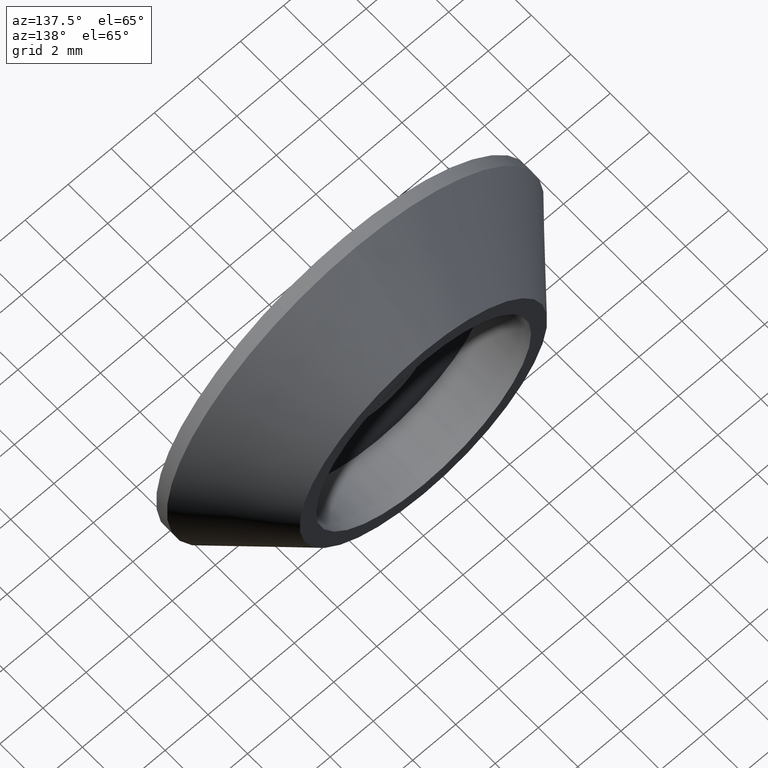
[diagram: clean part render]
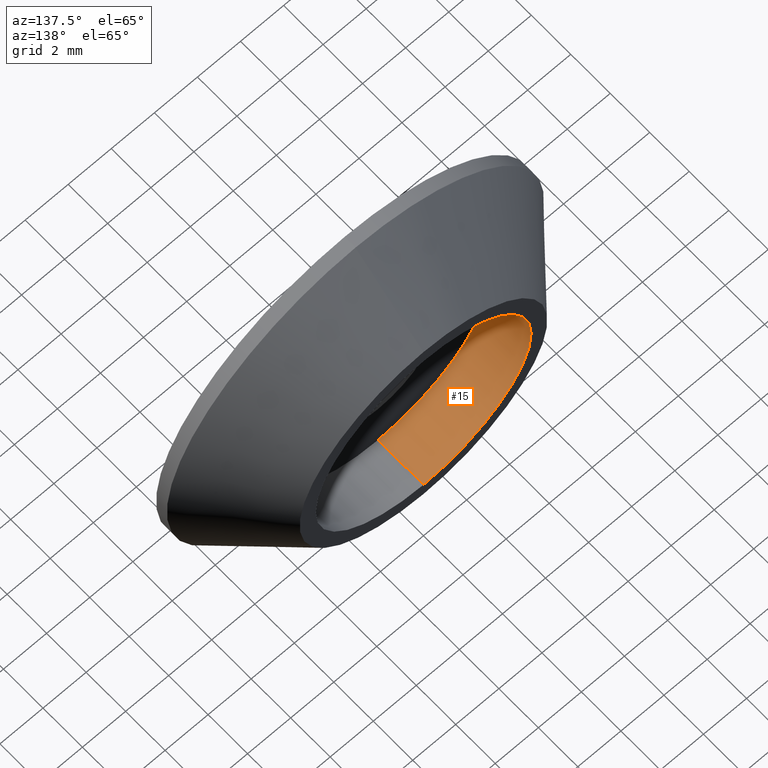
[diagram: same view with one face highlighted and labeled with its STEP entity id]
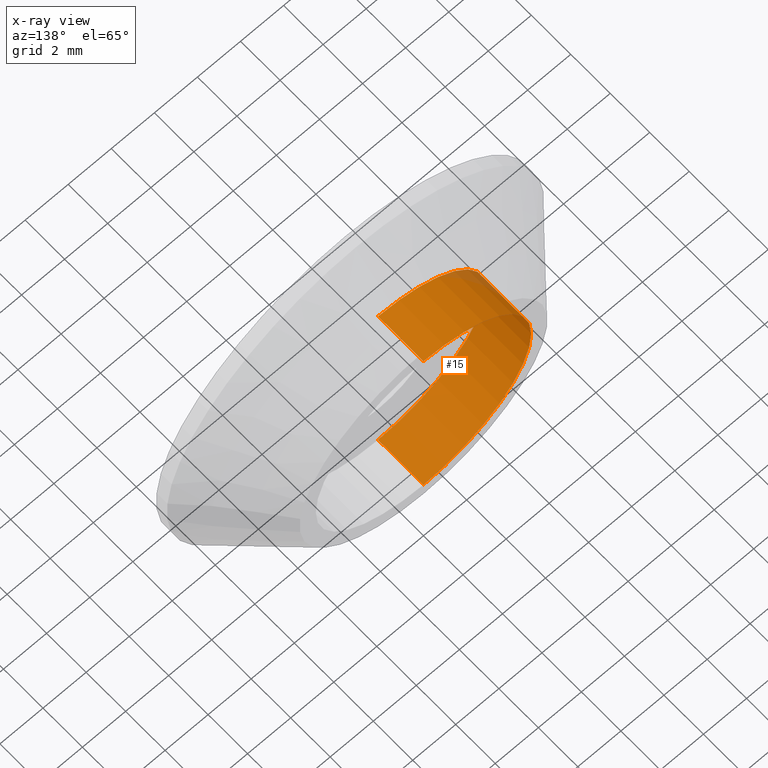
[diagram: x-ray of the same camera — body ghosted, the highlighted face saturated]
A machine part, auxiliary view. The second image highlights one B-rep face of the part: STEP entity #15.
The next image is the same camera in x-ray: the body ghosted, the highlighted face saturated — about 2% of this face is hidden behind the body in this view.
In plain terms, the highlighted cylindrical surface (partial cylindrical patch) has radius 5 mm, axis along (0, -1, 0).
Its self-contained STEP definition (entity closure, byte-faithful):
#1 = EDGE_CURVE ( 'NONE', #4, #12, #210, .T. ) ;
#4 = VERTEX_POINT ( 'NONE', #109 ) ;
#6 = ORIENTED_EDGE ( 'NONE', *, *, #9, .F. ) ;
#7 = VERTEX_POINT ( 'NONE', #211 ) ;
#8 = EDGE_LOOP ( 'NONE', ( #6, #11, #13, #48 ) ) ;
#9 = EDGE_CURVE ( 'NONE', #4, #7, #206, .T. ) ;
#11 = ORIENTED_EDGE ( 'NONE', *, *, #1, .T. ) ;
#12 = VERTEX_POINT ( 'NONE', #203 ) ;
#13 = ORIENTED_EDGE ( 'NONE', *, *, #46, .T. ) ;
#15 = ADVANCED_FACE ( 'NONE', ( #111 ), #108, .F. ) ;
#35 = EDGE_CURVE ( 'NONE', #7, #38, #95, .T. ) ;
#38 = VERTEX_POINT ( 'NONE', #219 ) ;
#46 = EDGE_CURVE ( 'NONE', #12, #38, #96, .T. ) ;
#48 = ORIENTED_EDGE ( 'NONE', *, *, #35, .F. ) ;
#68 = DIRECTION ( 'NONE',  ( 0.0000000000000000000, 0.0000000000000000000, -1.000000000000000000 ) ) ;
#69 = DIRECTION ( 'NONE',  ( 0.0000000000000000000, -1.000000000000000000, 0.0000000000000000000 ) ) ;
#70 = CARTESIAN_POINT ( 'NONE',  ( 0.0000000000000000000, 1.700000000000000200, 0.0000000000000000000 ) ) ;
#71 = AXIS2_PLACEMENT_3D ( 'NONE', #70, #69, #68 ) ;
#95 = LINE ( 'NONE', #222, #221 ) ;
#96 = CIRCLE ( 'NONE', #71, 5.000000000000000900 ) ;
#108 = CYLINDRICAL_SURFACE ( 'NONE', #198, 5.000000000000000900 ) ;
#109 = CARTESIAN_POINT ( 'NONE',  ( 6.123233995736766300E-016, 4.000000000000000000, 5.000000000000000000 ) ) ;
#110 = AXIS2_PLACEMENT_3D ( 'NONE', #201, #200, #199 ) ;
#111 = FACE_OUTER_BOUND ( 'NONE', #8, .T. ) ;
#136 = CARTESIAN_POINT ( 'NONE',  ( 0.0000000000000000000, 0.0000000000000000000, 0.0000000000000000000 ) ) ;
#198 = AXIS2_PLACEMENT_3D ( 'NONE', #136, #205, #202 ) ;
#199 = DIRECTION ( 'NONE',  ( 0.0000000000000000000, 0.0000000000000000000, -1.000000000000000000 ) ) ;
#200 = DIRECTION ( 'NONE',  ( 0.0000000000000000000, -1.000000000000000000, 0.0000000000000000000 ) ) ;
#201 = CARTESIAN_POINT ( 'NONE',  ( 0.0000000000000000000, 4.000000000000000000, 0.0000000000000000000 ) ) ;
#202 = DIRECTION ( 'NONE',  ( 0.0000000000000000000, 0.0000000000000000000, -1.000000000000000000 ) ) ;
#203 = CARTESIAN_POINT ( 'NONE',  ( 6.123233995736767300E-016, 1.700000000000000200, 5.000000000000000900 ) ) ;
#205 = DIRECTION ( 'NONE',  ( 0.0000000000000000000, -1.000000000000000000, 0.0000000000000000000 ) ) ;
#206 = CIRCLE ( 'NONE', #110, 5.000000000000000000 ) ;
#207 = DIRECTION ( 'NONE',  ( 0.0000000000000000000, -1.000000000000000000, 0.0000000000000000000 ) ) ;
#208 = VECTOR ( 'NONE', #207, 1000.000000000000000 ) ;
#209 = CARTESIAN_POINT ( 'NONE',  ( 6.123233995736767300E-016, 0.0000000000000000000, 5.000000000000000900 ) ) ;
#210 = LINE ( 'NONE', #209, #208 ) ;
#211 = CARTESIAN_POINT ( 'NONE',  ( 0.0000000000000000000, 4.000000000000000000, -5.000000000000000000 ) ) ;
#219 = CARTESIAN_POINT ( 'NONE',  ( 0.0000000000000000000, 1.700000000000000200, -5.000000000000000900 ) ) ;
#220 = DIRECTION ( 'NONE',  ( 0.0000000000000000000, -1.000000000000000000, 0.0000000000000000000 ) ) ;
#221 = VECTOR ( 'NONE', #220, 1000.000000000000000 ) ;
#222 = CARTESIAN_POINT ( 'NONE',  ( 0.0000000000000000000, 0.0000000000000000000, -5.000000000000000900 ) ) ;